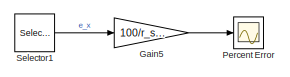
[diagram: root canvas - part 1/3, top right region]
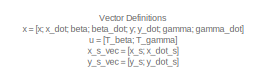
[diagram: root canvas - part 2/3, middle left region]
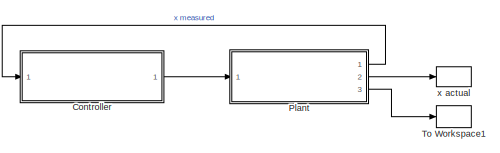
[diagram: root canvas - part 3/3, bottom left region]
MODEL slx_38fb86536b65
KIND model
CONFIG AbsTol = auto
CONFIG EnableMultiTasking = off
CONFIG FixedStep = auto
CONFIG MaxStep = auto
CONFIG MinStep = auto
CONFIG RelTol = 1e-9
CONFIG SampleTimeConstraint = Unconstrained
CONFIG SolverName = VariableStepAuto
CONFIG StartTime = 0.0
CONFIG StopTime = t_sim
BLOCK [ModelReference] Controller
  ModelNameDialog = FSFB_PID_Controller
  ModelReferenceVersion = 1.49
  Ports = [1, 1]
BLOCK [Gain] Gain5
  Commented = on
  Gain = 100/r_sim
BLOCK [Scope] Percent Error
  Commented = on
  Floating = off
  NumInputPorts = 1
  Ports = [1]
  ScopeSpecificationString = Simulink.scopes.TimeScopeBlockCfg('CurrentConfiguration', extmgr.ConfigurationSet(extmgr.Configuration('Core','General UI',true),extmgr.Configuration('Core','Source UI',true),extmgr.Configuration('Sources','WiredSimulink',true,'DataLoggingVariableName','ScopeData2'),extmgr.Configuration('Visuals','Time Domain',true,'SerializedDisplays',{struct('MinYLimReal','-1.29449','MaxYLimReal','1.86814','YLab...<+1556ch>
BLOCK [ModelReference] Plant
  ModelNameDialog = Simulated_Plant
  ModelReferenceVersion = 2.26
  Ports = [1, 3]
BLOCK [Selector] Selector1
  Commented = on
  IndexOptions = Index vector (dialog)
  Indices = [1]
  InputPortWidth = 5
  OutputSizes = 1
  Ports = [1, 1]
BLOCK [ToWorkspace] To Workspace1
  FixptAsFi = on
  MaxDataPoints = inf
  Ports = [1]
  SampleTime = -1
  VariableName = u
BLOCK [ToWorkspace] x actual
  FixptAsFi = on
  MaxDataPoints = inf
  Ports = [1]
  SampleTime = -1
  VariableName = x
ANNOTATION (root): Vector Definitions x = [x; x_dot; beta; beta_dot; y; y_dot; gamma; gamma_dot] u = [T_beta; T_gamma] x_s_vec = [x_s; x_dot_s] y_s_vec = [y_s; y_dot_s]
LINE Controller:1 -> Plant:1
LINE Gain5:1 -> Percent Error:1
LINE Plant:1 -> Controller:1
LINE Plant:2 -> x actual:1
LINE Plant:3 -> To Workspace1:1
LINE Selector1:1 -> Gain5:1
